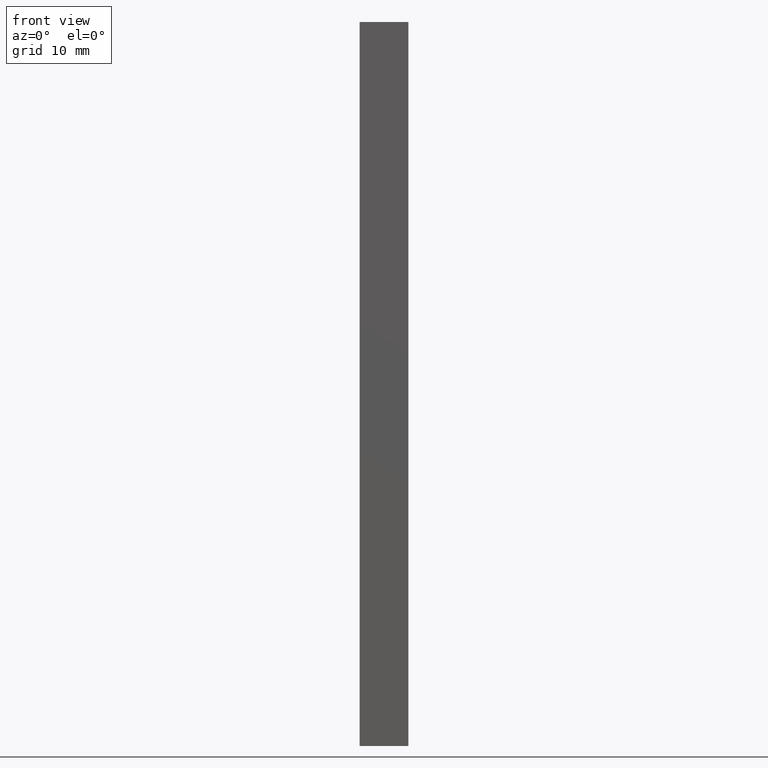
[diagram: clean part render]
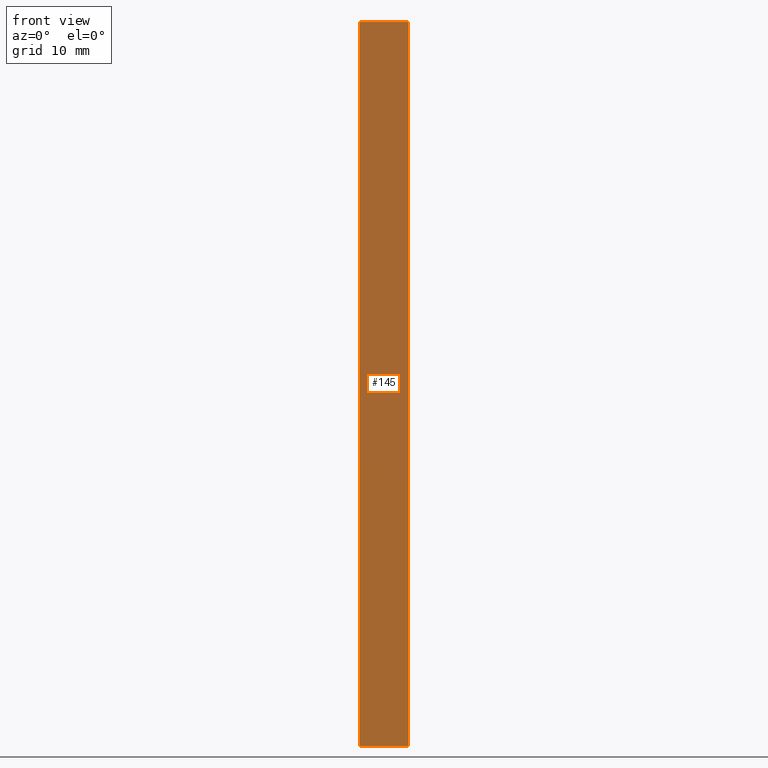
[diagram: same view with one face highlighted and labeled with its STEP entity id]
A machine part, front view. The second image highlights one B-rep face of the part: STEP entity #145.
In plain terms, the highlighted planar face has unit normal (0, -1, 0).
Its self-contained STEP definition (entity closure, byte-faithful):
#22=FACE_OUTER_BOUND('',#30,.T.);
#30=EDGE_LOOP('',(#122,#123,#124,#125));
#34=LINE('',#222,#50);
#39=LINE('',#234,#55);
#48=LINE('',#253,#64);
#49=LINE('',#255,#65);
#50=VECTOR('',#184,10.);
#55=VECTOR('',#193,10.);
#64=VECTOR('',#212,10.);
#65=VECTOR('',#215,10.);
#66=VERTEX_POINT('',#220);
#67=VERTEX_POINT('',#221);
#72=VERTEX_POINT('',#233);
#77=VERTEX_POINT('',#251);
#78=EDGE_CURVE('',#66,#67,#34,.T.);
#84=EDGE_CURVE('',#72,#67,#39,.T.);
#94=EDGE_CURVE('',#66,#77,#48,.T.);
#95=EDGE_CURVE('',#72,#77,#49,.T.);
#122=ORIENTED_EDGE('',*,*,#94,.T.);
#123=ORIENTED_EDGE('',*,*,#95,.F.);
#124=ORIENTED_EDGE('',*,*,#84,.T.);
#125=ORIENTED_EDGE('',*,*,#78,.F.);
#137=PLANE('',#178);
#145=ADVANCED_FACE('',(#22),#137,.T.);
#178=AXIS2_PLACEMENT_3D('',#254,#213,#214);
#184=DIRECTION('',(-1.,-2.77555756156289E-16,0.));
#193=DIRECTION('',(0.,0.,-1.));
#212=DIRECTION('',(0.,0.,1.));
#213=DIRECTION('center_axis',(2.77555756156289E-16,-1.,0.));
#214=DIRECTION('ref_axis',(1.,2.77555756156289E-16,0.));
#215=DIRECTION('',(1.,2.77555756156289E-16,0.));
#220=CARTESIAN_POINT('',(3.00000000000002,-2.22044604925031E-15,-44.45));
#221=CARTESIAN_POINT('',(-2.99999999999999,-3.88578058618805E-15,-44.45));
#222=CARTESIAN_POINT('',(-2.99999999999999,-3.88578058618805E-15,-44.45));
#233=CARTESIAN_POINT('',(-2.99999999999999,-3.88578058618805E-15,44.45));
#234=CARTESIAN_POINT('',(-2.99999999999999,-3.88578058618805E-15,0.));
#251=CARTESIAN_POINT('',(3.00000000000002,-2.22044604925031E-15,44.45));
#253=CARTESIAN_POINT('',(3.00000000000002,-2.22044604925031E-15,0.));
#254=CARTESIAN_POINT('Origin',(-2.99999999999999,-3.88578058618805E-15,
0.));
#255=CARTESIAN_POINT('',(-2.99999999999999,-3.88578058618805E-15,44.45));